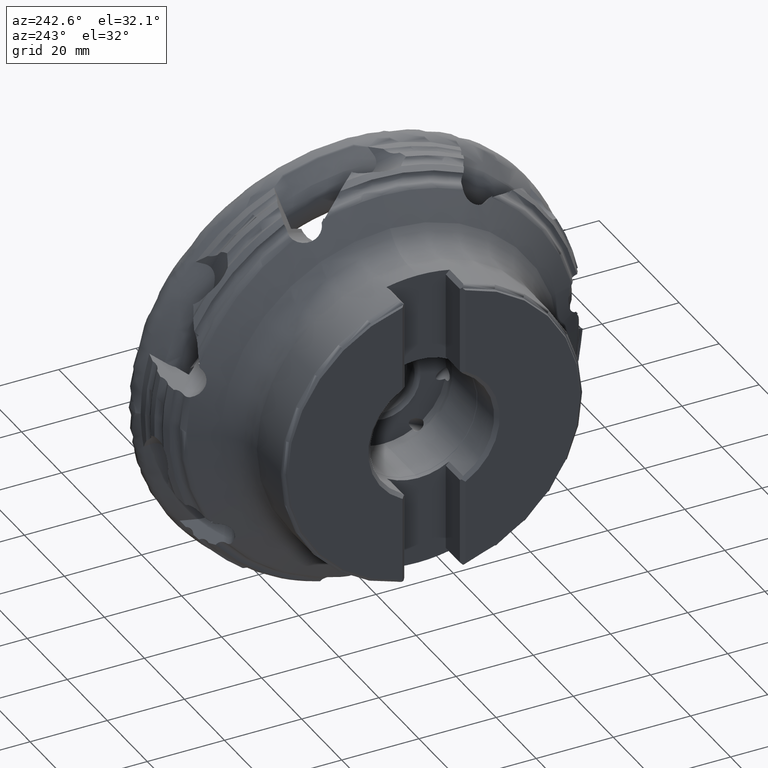
[diagram: clean part render]
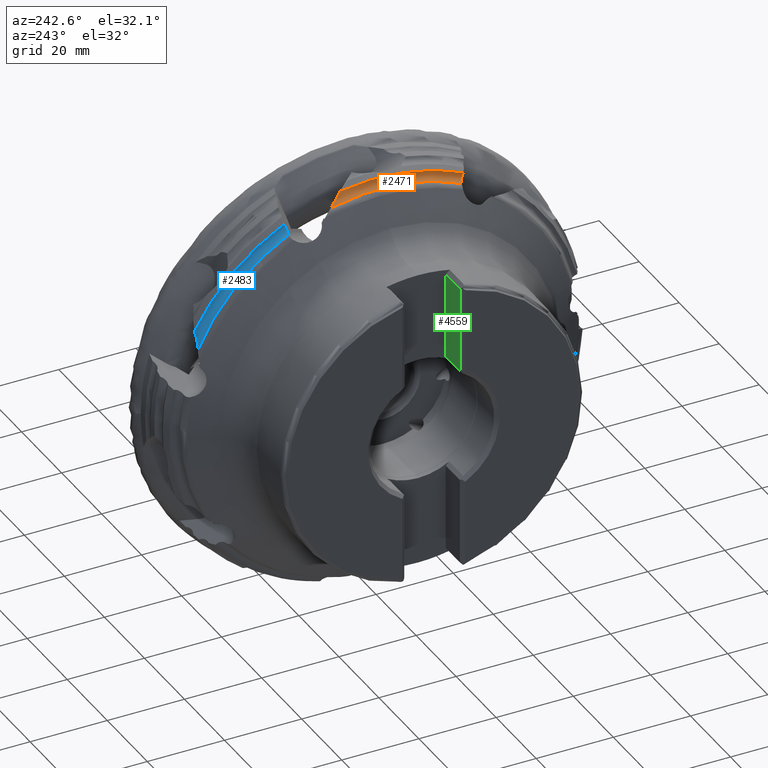
[diagram: same view with three faces highlighted in distinct colors, each labeled with its STEP entity id]
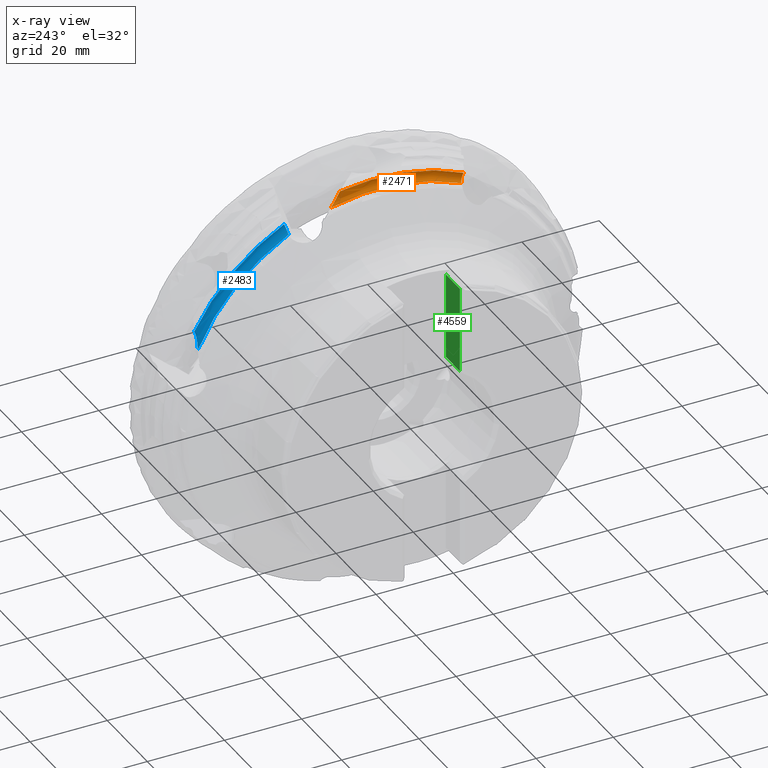
[diagram: x-ray of the same camera — body ghosted, the three highlighted faces saturated]
A machine part, auxiliary view with three faces highlighted in distinct colors.
The next image is the same camera in x-ray (body ghosted, the three faces saturated) — at least one of them is partly hidden behind the body in this view.
Their STEP definitions:

[orange] entity #2471 — the highlighted toroidal blend (fillet) surface has major radius 53.4155 mm and minor (blend) radius 1.8 mm.
#61 = EDGE_LOOP ( 'NONE', ( #1176, #1177, #1178, #1179, #1180 ) ) ;
#1093 = TOROIDAL_SURFACE ( 'NONE', #4122, 53.41549932201380100, 1.800000000000002300 ) ;
#1119 = FACE_OUTER_BOUND ( 'NONE', #61, .T. ) ;
#1176 = ORIENTED_EDGE ( 'NONE', *, *, #2756, .F. ) ;
#1177 = ORIENTED_EDGE ( 'NONE', *, *, #3515, .T. ) ;
#1178 = ORIENTED_EDGE ( 'NONE', *, *, #5748, .F. ) ;
#1179 = ORIENTED_EDGE ( 'NONE', *, *, #3091, .T. ) ;
#1180 = ORIENTED_EDGE ( 'NONE', *, *, #3565, .F. ) ;
#2471 = ADVANCED_FACE ( 'NONE', ( #1119 ), #1093, .F. ) ;
#2756 = EDGE_CURVE ( 'NONE', #6034, #5853, #12164, .T. ) ;
#3091 = EDGE_CURVE ( 'NONE', #5937, #4378, #12458, .T. ) ;
#3515 = EDGE_CURVE ( 'NONE', #6034, #5909, #5118, .T. ) ;
#3565 = EDGE_CURVE ( 'NONE', #5853, #4378, #5129, .T. ) ;
#4122 = AXIS2_PLACEMENT_3D ( 'NONE', #15313, #15328, #15305 ) ;
#4378 = VERTEX_POINT ( 'NONE', #10597 ) ;
#5118 = CIRCLE ( 'NONE', #7649, 51.62900275500000200 ) ;
#5129 = CIRCLE ( 'NONE', #7662, 53.60450000000000200 ) ;
#5748 = EDGE_CURVE ( 'NONE', #5937, #5909, #9549, .T. ) ;
#5853 = VERTEX_POINT ( 'NONE', #14044 ) ;
#5909 = VERTEX_POINT ( 'NONE', #14080 ) ;
#5937 = VERTEX_POINT ( 'NONE', #14101 ) ;
#6034 = VERTEX_POINT ( 'NONE', #14187 ) ;
#7649 = AXIS2_PLACEMENT_3D ( 'NONE', #9736, #9737, #9738 ) ;
#7662 = AXIS2_PLACEMENT_3D ( 'NONE', #9829, #9830, #9831 ) ;
#8148 = CARTESIAN_POINT ( 'NONE',  ( -21.52798171999999600, 12.51013510695293400, 50.09042268819042200 ) ) ;
#8152 = CARTESIAN_POINT ( 'NONE',  ( -21.30436510647690800, 12.21107020804150500, 50.19350660386198400 ) ) ;
#8159 = CARTESIAN_POINT ( 'NONE',  ( -21.10244737631775900, 11.91622267074316900, 50.33198975574915600 ) ) ;
#8160 = CARTESIAN_POINT ( 'NONE',  ( -20.73225760600303100, 11.33306692073230700, 50.66384513874915300 ) ) ;
#8161 = CARTESIAN_POINT ( 'NONE',  ( -20.56306294014249800, 11.04244146664043800, 50.85962573735498200 ) ) ;
#8162 = CARTESIAN_POINT ( 'NONE',  ( -20.27305183080685000, 10.48601853016362800, 51.30187408308030700 ) ) ;
#8163 = CARTESIAN_POINT ( 'NONE',  ( -20.15021365983080400, 10.21795478194728300, 51.54847279018491000 ) ) ;
#8164 = CARTESIAN_POINT ( 'NONE',  ( -20.01965424887354700, 9.843702261240064600, 51.97410968134727900 ) ) ;
#8165 = CARTESIAN_POINT ( 'NONE',  ( -19.98600568154649400, 9.725739621213195500, 52.12317841620187400 ) ) ;
#8166 = CARTESIAN_POINT ( 'NONE',  ( -19.94665243022397800, 9.509030644813449800, 52.44166897230473300 ) ) ;
#8167 = CARTESIAN_POINT ( 'NONE',  ( -19.94115447215092700, 9.411141557542732600, 52.60993237308837700 ) ) ;
#8168 = CARTESIAN_POINT ( 'NONE',  ( -19.95799999999999800, 9.333409605008006000, 52.78569773523071300 ) ) ;
#8725 = CARTESIAN_POINT ( 'NONE',  ( -20.73052625281723100, -21.68213326305241000, 47.17699454893976700 ) ) ;
#8732 = CARTESIAN_POINT ( 'NONE',  ( -20.88016158655104700, -21.59362083412019100, 47.12696450629868400 ) ) ;
#8734 = CARTESIAN_POINT ( 'NONE',  ( -20.59429207347944800, -21.77447210014866400, 47.24695029765632600 ) ) ;
#8735 = CARTESIAN_POINT ( 'NONE',  ( -20.34985669796309400, -21.96715398296771200, 47.42854305375882300 ) ) ;
#8736 = CARTESIAN_POINT ( 'NONE',  ( -20.24427149303894400, -22.06592929968009600, 47.53926322822570000 ) ) ;
#8737 = CARTESIAN_POINT ( 'NONE',  ( -20.07830981440902500, -22.25876962347874200, 47.79133728768491800 ) ) ;
#8738 = CARTESIAN_POINT ( 'NONE',  ( -20.01658854247372700, -22.35491741986421800, 47.93581393423256300 ) ) ;
#8739 = CARTESIAN_POINT ( 'NONE',  ( -19.94756390659570800, -22.53102385122548100, 48.23979748645923800 ) ) ;
#8740 = CARTESIAN_POINT ( 'NONE',  ( -19.93917816384779900, -22.61385443473140800, 48.40430045202731400 ) ) ;
#8741 = CARTESIAN_POINT ( 'NONE',  ( -19.95799999999999500, -22.68459068794756200, 48.56801175228694200 ) ) ;
#9549 = B_SPLINE_CURVE_WITH_KNOTS ( 'NONE', 3,
 ( #13716, #13717, #13721, #13722 ),
 .UNSPECIFIED., .F., .F.,
 ( 4, 4 ),
 ( 0.005038222669734309900, 0.005746272219994672800 ),
 .UNSPECIFIED. ) ;
#9736 = CARTESIAN_POINT ( 'NONE',  ( -21.52798172000000000, 0.0000000000000000000, 0.0000000000000000000 ) ) ;
#9737 = DIRECTION ( 'NONE',  ( 1.000000000000000000, -0.0000000000000000000, -0.0000000000000000000 ) ) ;
#9738 = DIRECTION ( 'NONE',  ( 0.0000000000000000000, 0.0000000000000000000, -1.000000000000000000 ) ) ;
#9829 = CARTESIAN_POINT ( 'NONE',  ( -19.95799999999999500, 0.0000000000000000000, 0.0000000000000000000 ) ) ;
#9830 = DIRECTION ( 'NONE',  ( 1.000000000000000000, -0.0000000000000000000, -0.0000000000000000000 ) ) ;
#9831 = DIRECTION ( 'NONE',  ( 0.0000000000000000000, 0.0000000000000000000, -1.000000000000000000 ) ) ;
#10597 = CARTESIAN_POINT ( 'NONE',  ( -19.95799999999999500, -22.68459068794756200, 48.56801175228694200 ) ) ;
#12164 = B_SPLINE_CURVE_WITH_KNOTS ( 'NONE', 3,
 ( #8148, #8152, #8159, #8160, #8161, #8162, #8163, #8164, #8165, #8166, #8167, #8168 ),
 .UNSPECIFIED., .F., .F.,
 ( 4, 2, 2, 2, 2, 4 ),
 ( 3.424171141243972500E-007, 0.001148929459827790600, 0.002297516502541456700, 0.003446103545255123400, 0.004020397066611957500, 0.004594690587968791900 ),
 .UNSPECIFIED. ) ;
#12458 = B_SPLINE_CURVE_WITH_KNOTS ( 'NONE', 3,
 ( #8732, #8725, #8734, #8735, #8736, #8737, #8738, #8739, #8740, #8741 ),
 .UNSPECIFIED., .F., .F.,
 ( 4, 2, 2, 2, 4 ),
 ( 0.0007276953168959640000, 0.001264743962093041500, 0.001801792607290118800, 0.002338841252487196400, 0.002875889897684273700 ),
 .UNSPECIFIED. ) ;
#13716 = CARTESIAN_POINT ( 'NONE',  ( -20.88016158655104700, -21.59362083412019100, 47.12696450629868400 ) ) ;
#13717 = CARTESIAN_POINT ( 'NONE',  ( -21.07594970766265900, -21.47780806635175600, 47.06150344303630800 ) ) ;
#13721 = CARTESIAN_POINT ( 'NONE',  ( -21.29657719605330300, -21.38738239458821500, 47.02213751534294100 ) ) ;
#13722 = CARTESIAN_POINT ( 'NONE',  ( -21.52798171999993200, -21.32254757849777200, 47.02023915547961500 ) ) ;
#14044 = CARTESIAN_POINT ( 'NONE',  ( -19.95799999999999800, 9.333409605008006000, 52.78569773523071300 ) ) ;
#14080 = CARTESIAN_POINT ( 'NONE',  ( -21.52798171999993200, -21.32254757849777200, 47.02023915547961500 ) ) ;
#14101 = CARTESIAN_POINT ( 'NONE',  ( -20.88016158655104700, -21.59362083412019100, 47.12696450629868400 ) ) ;
#14187 = CARTESIAN_POINT ( 'NONE',  ( -21.52798171999999600, 12.51013510695293400, 50.09042268819042200 ) ) ;
#15305 = DIRECTION ( 'NONE',  ( 0.0000000000000000000, 0.0000000000000000000, -1.000000000000000000 ) ) ;
#15313 = CARTESIAN_POINT ( 'NONE',  ( -21.74804992771731100, 0.0000000000000000000, 0.0000000000000000000 ) ) ;
#15328 = DIRECTION ( 'NONE',  ( 1.000000000000000000, -0.0000000000000000000, -0.0000000000000000000 ) ) ;

[blue] entity #2483 — the highlighted toroidal blend (fillet) surface has major radius 53.4155 mm and minor (blend) radius 1.8 mm.
#58 = EDGE_LOOP ( 'NONE', ( #1171, #1172, #1173, #1174, #1175 ) ) ;
#1135 = FACE_OUTER_BOUND ( 'NONE', #58, .T. ) ;
#1136 = TOROIDAL_SURFACE ( 'NONE', #4159, 53.41549932201380100, 1.800000000000002300 ) ;
#1171 = ORIENTED_EDGE ( 'NONE', *, *, #2772, .F. ) ;
#1172 = ORIENTED_EDGE ( 'NONE', *, *, #3525, .T. ) ;
#1173 = ORIENTED_EDGE ( 'NONE', *, *, #3473, .F. ) ;
#1174 = ORIENTED_EDGE ( 'NONE', *, *, #3654, .T. ) ;
#1175 = ORIENTED_EDGE ( 'NONE', *, *, #3662, .F. ) ;
#2483 = ADVANCED_FACE ( 'NONE', ( #1135 ), #1136, .F. ) ;
#2772 = EDGE_CURVE ( 'NONE', #6065, #6047, #12078, .T. ) ;
#3473 = EDGE_CURVE ( 'NONE', #4407, #7037, #9411, .T. ) ;
#3525 = EDGE_CURVE ( 'NONE', #6065, #7037, #5123, .T. ) ;
#3654 = EDGE_CURVE ( 'NONE', #4407, #4401, #9442, .T. ) ;
#3662 = EDGE_CURVE ( 'NONE', #6047, #4401, #5183, .T. ) ;
#4159 = AXIS2_PLACEMENT_3D ( 'NONE', #15436, #15432, #15381 ) ;
#4401 = VERTEX_POINT ( 'NONE', #10620 ) ;
#4407 = VERTEX_POINT ( 'NONE', #10626 ) ;
#5123 = CIRCLE ( 'NONE', #7650, 51.62900275500000200 ) ;
#5183 = CIRCLE ( 'NONE', #7670, 53.60450000000000200 ) ;
#6047 = VERTEX_POINT ( 'NONE', #14199 ) ;
#6065 = VERTEX_POINT ( 'NONE', #14186 ) ;
#7037 = VERTEX_POINT ( 'NONE', #14610 ) ;
#7650 = AXIS2_PLACEMENT_3D ( 'NONE', #9757, #9758, #9759 ) ;
#7670 = AXIS2_PLACEMENT_3D ( 'NONE', #10008, #10009, #10010 ) ;
#8190 = CARTESIAN_POINT ( 'NONE',  ( -21.52798172000000000, 46.96221108681826500, 21.45005024033560300 ) ) ;
#8191 = CARTESIAN_POINT ( 'NONE',  ( -21.30436510647691200, 46.85634142286121300, 21.74814036376258000 ) ) ;
#8196 = CARTESIAN_POINT ( 'NONE',  ( -21.10244737631775500, 46.78077747818930000, 22.06500428388148500 ) ) ;
#8197 = CARTESIAN_POINT ( 'NONE',  ( -20.73225760600302400, 46.67664080121814200, 22.72784225541467200 ) ) ;
#8198 = CARTESIAN_POINT ( 'NONE',  ( -20.56306294014248700, 46.64850623007774300, 23.07712959166278200 ) ) ;
#8199 = CARTESIAN_POINT ( 'NONE',  ( -20.27305183080683500, 46.64734588342164300, 23.78789589441631200 ) ) ;
#8200 = CARTESIAN_POINT ( 'NONE',  ( -20.15021365983079300, 46.67300950291102900, 24.15122835111151600 ) ) ;
#8201 = CARTESIAN_POINT ( 'NONE',  ( -20.01965424887354000, 46.77244319454072800, 24.70921101512804400 ) ) ;
#8202 = CARTESIAN_POINT ( 'NONE',  ( -19.98600568154648000, 46.81544132144461700, 24.89438075681390200 ) ) ;
#8203 = CARTESIAN_POINT ( 'NONE',  ( -19.94665243022398800, 46.92933142831812900, 25.26238627081510300 ) ) ;
#8204 = CARTESIAN_POINT ( 'NONE',  ( -19.94115447215092700, 46.99985220477137200, 25.44382955544808700 ) ) ;
#8205 = CARTESIAN_POINT ( 'NONE',  ( -19.95799999999998800, 47.08880601873763500, 25.61419075394922000 ) ) ;
#9345 = CARTESIAN_POINT ( 'NONE',  ( -21.07517360089183400, 23.40288735089847800, 46.13491469185587600 ) ) ;
#9346 = CARTESIAN_POINT ( 'NONE',  ( -21.29692312011017600, 23.42863088140698100, 46.03907454095364200 ) ) ;
#9350 = CARTESIAN_POINT ( 'NONE',  ( -20.88016158655103300, 23.38194214889956900, 46.26575435082840200 ) ) ;
#9351 = CARTESIAN_POINT ( 'NONE',  ( -21.52798172000021600, 23.46751232008905000, 45.98727857769215200 ) ) ;
#9411 = B_SPLINE_CURVE_WITH_KNOTS ( 'NONE', 3,
 ( #9350, #9345, #9346, #9351 ),
 .UNSPECIFIED., .F., .F.,
 ( 4, 4 ),
 ( 0.002046442648088766600, 0.002750636885856281900 ),
 .UNSPECIFIED. ) ;
#9442 = B_SPLINE_CURVE_WITH_KNOTS ( 'NONE', 3,
 ( #9973, #9975, #9979, #9980, #9981, #9982, #9983, #9984, #9985, #9986 ),
 .UNSPECIFIED., .F., .F.,
 ( 4, 2, 2, 2, 4 ),
 ( 0.0007276953168960427100, 0.001264743962093124400, 0.001801792607290206400, 0.002338841252487287900, 0.002875889897684369900 ),
 .UNSPECIFIED. ) ;
#9757 = CARTESIAN_POINT ( 'NONE',  ( -21.52798172000000000, 0.0000000000000000000, 0.0000000000000000000 ) ) ;
#9758 = DIRECTION ( 'NONE',  ( 1.000000000000000000, -0.0000000000000000000, -0.0000000000000000000 ) ) ;
#9759 = DIRECTION ( 'NONE',  ( 0.0000000000000000000, 0.0000000000000000000, -1.000000000000000000 ) ) ;
#9973 = CARTESIAN_POINT ( 'NONE',  ( -20.88016158655103300, 23.38194214889956900, 46.26575435082840200 ) ) ;
#9975 = CARTESIAN_POINT ( 'NONE',  ( -20.73052625281723500, 23.36587061452862500, 46.36614937573061500 ) ) ;
#9979 = CARTESIAN_POINT ( 'NONE',  ( -20.59429207347944400, 23.36299189800983800, 46.48195948153311700 ) ) ;
#9980 = CARTESIAN_POINT ( 'NONE',  ( -20.34985669796309400, 23.38483164277829800, 46.74582547514361200 ) ) ;
#9981 = CARTESIAN_POINT ( 'NONE',  ( -20.24427149303893700, 23.40981075827531700, 46.89208402708020200 ) ) ;
#9982 = CARTESIAN_POINT ( 'NONE',  ( -20.07830981440902500, 23.48665621859846600, 47.20001826870125700 ) ) ;
#9983 = CARTESIAN_POINT ( 'NONE',  ( -20.01658854247372700, 23.53966543883326800, 47.36526935861456900 ) ) ;
#9984 = CARTESIAN_POINT ( 'NONE',  ( -19.94756390659570800, 23.66752878612107800, 47.69248555566402100 ) ) ;
#9985 = CARTESIAN_POINT ( 'NONE',  ( -19.93917816384779900, 23.74449835946360200, 47.85981103496737200 ) ) ;
#9986 = CARTESIAN_POINT ( 'NONE',  ( -19.95799999999999500, 23.82838967554038900, 48.01718719084450300 ) ) ;
#10008 = CARTESIAN_POINT ( 'NONE',  ( -19.95799999999999500, 0.0000000000000000000, 0.0000000000000000000 ) ) ;
#10009 = DIRECTION ( 'NONE',  ( 1.000000000000000000, -0.0000000000000000000, -0.0000000000000000000 ) ) ;
#10010 = DIRECTION ( 'NONE',  ( 0.0000000000000000000, 0.0000000000000000000, -1.000000000000000000 ) ) ;
#10620 = CARTESIAN_POINT ( 'NONE',  ( -19.95799999999999500, 23.82838967554038900, 48.01718719084450300 ) ) ;
#10626 = CARTESIAN_POINT ( 'NONE',  ( -20.88016158655103300, 23.38194214889956900, 46.26575435082840200 ) ) ;
#12078 = B_SPLINE_CURVE_WITH_KNOTS ( 'NONE', 3,
 ( #8190, #8191, #8196, #8197, #8198, #8199, #8200, #8201, #8202, #8203, #8204, #8205 ),
 .UNSPECIFIED., .F., .F.,
 ( 4, 2, 2, 2, 2, 4 ),
 ( 3.424171141433768200E-007, 0.001148929459827828300, 0.002297516502541513500, 0.003446103545255198500, 0.004020397066612038100, 0.004594690587968878700 ),
 .UNSPECIFIED. ) ;
#14186 = CARTESIAN_POINT ( 'NONE',  ( -21.52798172000000000, 46.96221108681826500, 21.45005024033560300 ) ) ;
#14199 = CARTESIAN_POINT ( 'NONE',  ( -19.95799999999998800, 47.08880601873763500, 25.61419075394922000 ) ) ;
#14610 = CARTESIAN_POINT ( 'NONE',  ( -21.52798172000021600, 23.46751232008905000, 45.98727857769215200 ) ) ;
#15381 = DIRECTION ( 'NONE',  ( 0.0000000000000000000, 0.0000000000000000000, -1.000000000000000000 ) ) ;
#15432 = DIRECTION ( 'NONE',  ( 1.000000000000000000, -0.0000000000000000000, -0.0000000000000000000 ) ) ;
#15436 = CARTESIAN_POINT ( 'NONE',  ( -21.74804992771731100, 0.0000000000000000000, 0.0000000000000000000 ) ) ;

[green] entity #4559 — the highlighted planar face has unit normal (0, 1, 0).
#75 = EDGE_LOOP ( 'NONE', ( #1435, #1436, #1437, #1438 ) ) ;
#1435 = ORIENTED_EDGE ( 'NONE', *, *, #2979, .T. ) ;
#1436 = ORIENTED_EDGE ( 'NONE', *, *, #2967, .T. ) ;
#1437 = ORIENTED_EDGE ( 'NONE', *, *, #2974, .F. ) ;
#1438 = ORIENTED_EDGE ( 'NONE', *, *, #2963, .T. ) ;
#2963 = EDGE_CURVE ( 'NONE', #15587, #15595, #4877, .T. ) ;
#2967 = EDGE_CURVE ( 'NONE', #12490, #15602, #4881, .T. ) ;
#2974 = EDGE_CURVE ( 'NONE', #15587, #15602, #4879, .T. ) ;
#2979 = EDGE_CURVE ( 'NONE', #15595, #12490, #4891, .T. ) ;
#4018 = CARTESIAN_POINT ( 'NONE',  ( -47.99999999999999300, -7.200000000000008200, 14.76810172100711000 ) ) ;
#4033 = CARTESIAN_POINT ( 'NONE',  ( -40.94999999999999600, -7.200000000000008200, 14.76810172100711000 ) ) ;
#4156 = CARTESIAN_POINT ( 'NONE',  ( -40.94999999999999600, -7.200000000000014400, 37.12820478333588900 ) ) ;
#4164 = CARTESIAN_POINT ( 'NONE',  ( -47.99999999999999300, -7.200000000000013500, 37.12820478333588900 ) ) ;
#4559 = ADVANCED_FACE ( 'NONE', ( #5523 ), #13122, .T. ) ;
#4877 = LINE ( 'NONE', #8551, #4880 ) ;
#4879 = LINE ( 'NONE', #8544, #4890 ) ;
#4880 = VECTOR ( 'NONE', #8553, 1000.000000000000000 ) ;
#4881 = LINE ( 'NONE', #8555, #4884 ) ;
#4884 = VECTOR ( 'NONE', #8556, 1000.000000000000000 ) ;
#4890 = VECTOR ( 'NONE', #8562, 1000.000000000000000 ) ;
#4891 = LINE ( 'NONE', #8565, #4894 ) ;
#4894 = VECTOR ( 'NONE', #8566, 1000.000000000000000 ) ;
#5523 = FACE_OUTER_BOUND ( 'NONE', #75, .T. ) ;
#7838 = AXIS2_PLACEMENT_3D ( 'NONE', #13120, #13124, #13125 ) ;
#8544 = CARTESIAN_POINT ( 'NONE',  ( -40.94999999999999600, -7.200000000000014400, 37.12820478333588900 ) ) ;
#8551 = CARTESIAN_POINT ( 'NONE',  ( -40.94999999999999600, -7.200000000000014400, 37.12820478333588900 ) ) ;
#8553 = DIRECTION ( 'NONE',  ( 0.0000000000000000000, 2.715341762510858000E-016, -1.000000000000000000 ) ) ;
#8555 = CARTESIAN_POINT ( 'NONE',  ( -47.99999999999999300, -7.200000000000014400, 37.12820478333588900 ) ) ;
#8556 = DIRECTION ( 'NONE',  ( 0.0000000000000000000, -2.715341762510858000E-016, 1.000000000000000000 ) ) ;
#8562 = DIRECTION ( 'NONE',  ( -1.000000000000000000, 0.0000000000000000000, 0.0000000000000000000 ) ) ;
#8565 = CARTESIAN_POINT ( 'NONE',  ( -40.94999999999999600, -7.200000000000008200, 14.76810172100711000 ) ) ;
#8566 = DIRECTION ( 'NONE',  ( -1.000000000000000000, 0.0000000000000000000, 0.0000000000000000000 ) ) ;
#12490 = VERTEX_POINT ( 'NONE', #4018 ) ;
#13120 = CARTESIAN_POINT ( 'NONE',  ( -40.94999999999999600, -7.200000000000014400, 37.12820478333588900 ) ) ;
#13122 = PLANE ( 'NONE',  #7838 ) ;
#13124 = DIRECTION ( 'NONE',  ( 0.0000000000000000000, 1.000000000000000000, 2.715341762510858000E-016 ) ) ;
#13125 = DIRECTION ( 'NONE',  ( 0.0000000000000000000, -2.715341762510858000E-016, 1.000000000000000000 ) ) ;
#15587 = VERTEX_POINT ( 'NONE', #4156 ) ;
#15595 = VERTEX_POINT ( 'NONE', #4033 ) ;
#15602 = VERTEX_POINT ( 'NONE', #4164 ) ;